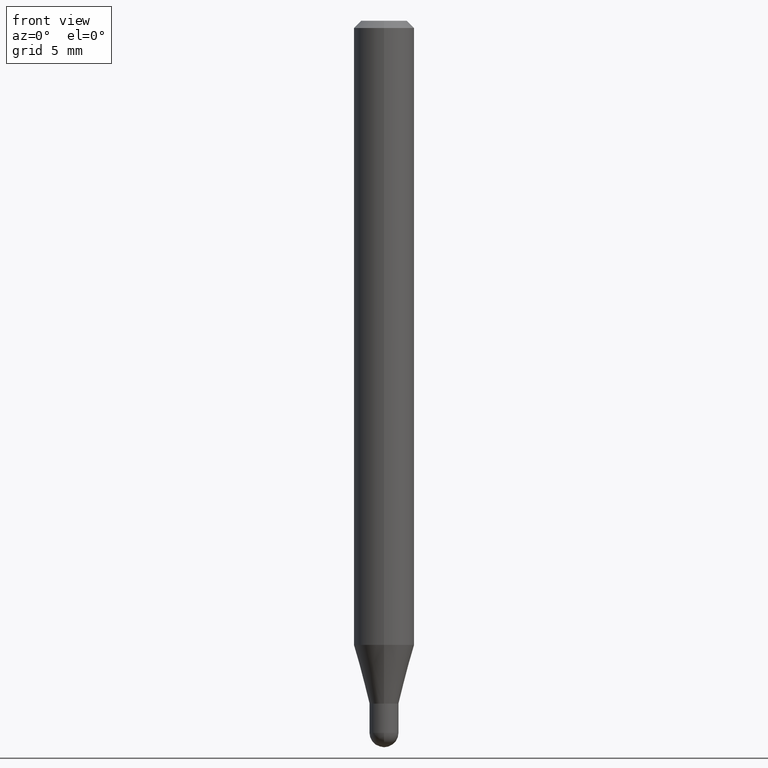
[diagram: clean part render]
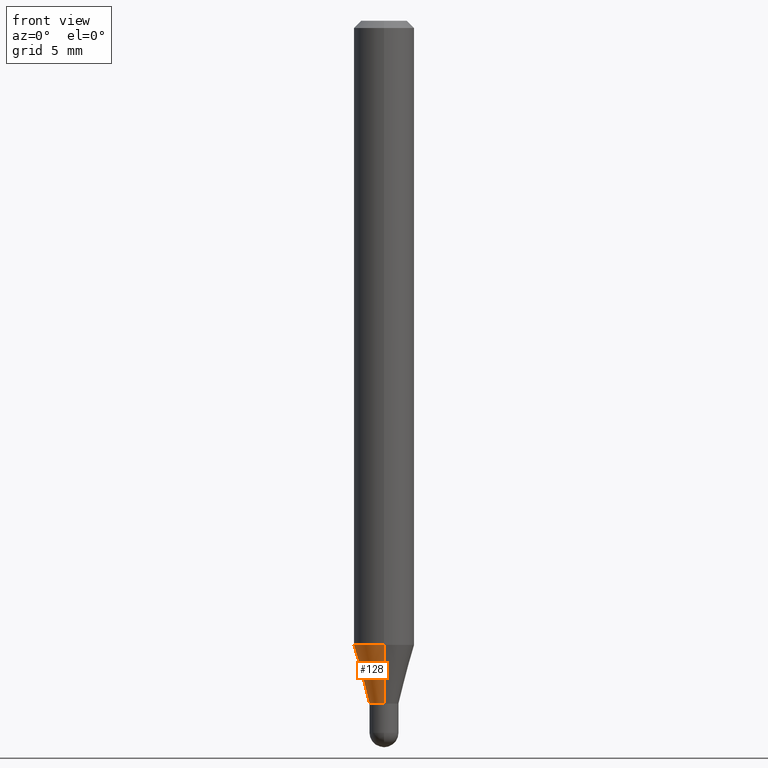
[diagram: same view with one face highlighted and labeled with its STEP entity id]
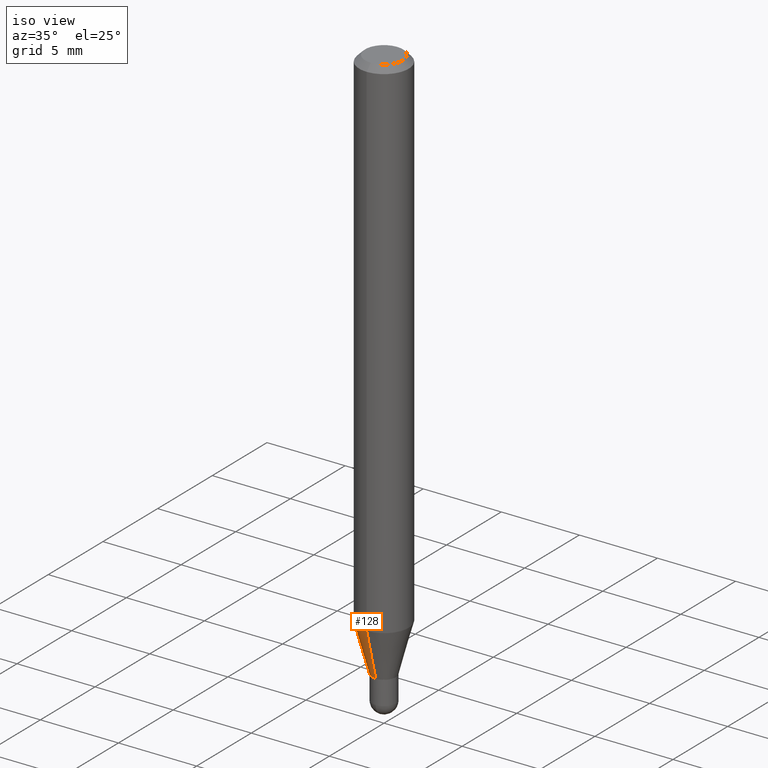
[diagram: same view with one face highlighted and labeled with its STEP entity id]
A machine part, front view. The second image highlights one B-rep face of the part: STEP entity #128.
A second angle (iso view) of the same face is appended — the face is thin or edge-on in the first view.
In plain terms, the highlighted conical surface has half-angle 15 deg.
Its self-contained STEP definition (entity closure, byte-faithful):
#2 = EDGE_CURVE ( 'NONE', #340, #117, #421, .T. ) ;
#14 = CARTESIAN_POINT ( 'NONE',  ( -4.364351673553602629E-16, -0.06250000000000452416, -1.288708348754016741 ) ) ;
#15 = ORIENTED_EDGE ( 'NONE', *, *, #466, .T. ) ;
#18 = LINE ( 'NONE', #137, #19 ) ;
#19 = VECTOR ( 'NONE', #256, 39.37007874015748143 ) ;
#45 = CARTESIAN_POINT ( 'NONE',  ( 3.286260152890810419E-16, 0.02999999999999555106, -1.409999999999999920 ) ) ;
#93 = CONICAL_SURFACE ( 'NONE', #160, 0.03000000000000047420, 0.2617993877991573459 ) ;
#94 = CARTESIAN_POINT ( 'NONE',  ( 3.448120673174655335E-29, -4.922974859177649894E-15, -1.409999999999999920 ) ) ;
#115 = ORIENTED_EDGE ( 'NONE', *, *, #424, .F. ) ;
#117 = VERTEX_POINT ( 'NONE', #14 ) ;
#121 = ORIENTED_EDGE ( 'NONE', *, *, #174, .F. ) ;
#128 = ADVANCED_FACE ( 'NONE', ( #172 ), #93, .T. ) ;
#137 = CARTESIAN_POINT ( 'NONE',  ( 2.131628207280678885E-16, 0.02999999999999555106, -1.409999999999999920 ) ) ;
#160 = AXIS2_PLACEMENT_3D ( 'NONE', #300, #332, #339 ) ;
#171 = DIRECTION ( 'NONE',  ( -6.982962677686265922E-15, -1.000000000000000000, 0.000000000000000000 ) ) ;
#172 = FACE_OUTER_BOUND ( 'NONE', #353, .T. ) ;
#174 = EDGE_CURVE ( 'NONE', #503, #117, #251, .T. ) ;
#185 = ORIENTED_EDGE ( 'NONE', *, *, #2, .T. ) ;
#206 = CARTESIAN_POINT ( 'NONE',  ( -2.094888803305568117E-16, -0.03000000000000539388, -1.409999999999999920 ) ) ;
#251 = CIRCLE ( 'NONE', #426, 0.06250000000000000000 ) ;
#256 = DIRECTION ( 'NONE',  ( 1.839019923739648830E-15, 0.2588190451025317862, 0.9659258262890653146 ) ) ;
#273 = CIRCLE ( 'NONE', #328, 0.03000000000000047420 ) ;
#275 = CARTESIAN_POINT ( 'NONE',  ( -2.094888803305568117E-16, -0.03000000000000539388, -1.409999999999999920 ) ) ;
#297 = CARTESIAN_POINT ( 'NONE',  ( 4.440892098500938748E-16, 0.06249999999999548278, -1.288708348754017408 ) ) ;
#300 = CARTESIAN_POINT ( 'NONE',  ( 3.448120673174655335E-29, -4.922974859177649894E-15, -1.409999999999999920 ) ) ;
#327 = VECTOR ( 'NONE', #344, 39.37007874015748854 ) ;
#328 = AXIS2_PLACEMENT_3D ( 'NONE', #94, #404, #171 ) ;
#332 = DIRECTION ( 'NONE',  ( -2.445475654733798440E-29, 3.491471531331666661E-15, 1.000000000000000000 ) ) ;
#336 = VERTEX_POINT ( 'NONE', #45 ) ;
#339 = DIRECTION ( 'NONE',  ( -6.982962677686265922E-15, -1.000000000000000000, 0.000000000000000000 ) ) ;
#340 = VERTEX_POINT ( 'NONE', #206 ) ;
#344 = DIRECTION ( 'NONE',  ( -1.807323732225377865E-15, -0.2588190451025250138, 0.9659258262890670910 ) ) ;
#353 = EDGE_LOOP ( 'NONE', ( #115, #15, #185, #121 ) ) ;
#404 = DIRECTION ( 'NONE',  ( -2.445475654733798440E-29, 3.491471531331666661E-15, 1.000000000000000000 ) ) ;
#420 = DIRECTION ( 'NONE',  ( -2.445475654733798440E-29, 3.491471531331666661E-15, 1.000000000000000000 ) ) ;
#421 = LINE ( 'NONE', #275, #327 ) ;
#424 = EDGE_CURVE ( 'NONE', #336, #503, #18, .T. ) ;
#426 = AXIS2_PLACEMENT_3D ( 'NONE', #505, #420, #430 ) ;
#430 = DIRECTION ( 'NONE',  ( -6.982962677686265922E-15, -1.000000000000000000, 4.370956789862821150E-15 ) ) ;
#466 = EDGE_CURVE ( 'NONE', #336, #340, #273, .T. ) ;
#503 = VERTEX_POINT ( 'NONE', #297 ) ;
#505 = CARTESIAN_POINT ( 'NONE',  ( 3.151504892930142346E-29, -4.499488511864091280E-15, -1.288708348754017186 ) ) ;